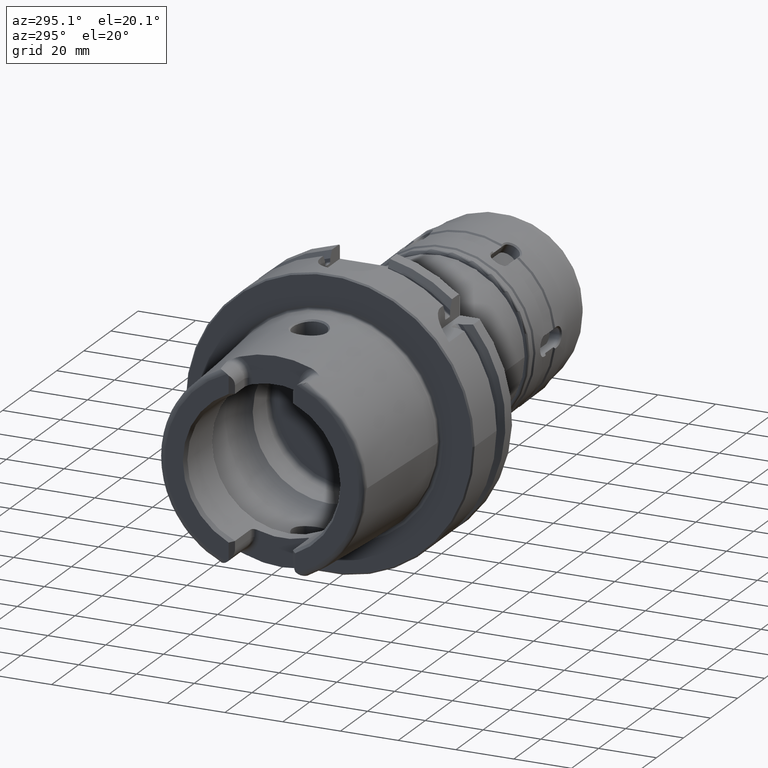
[diagram: clean part render]
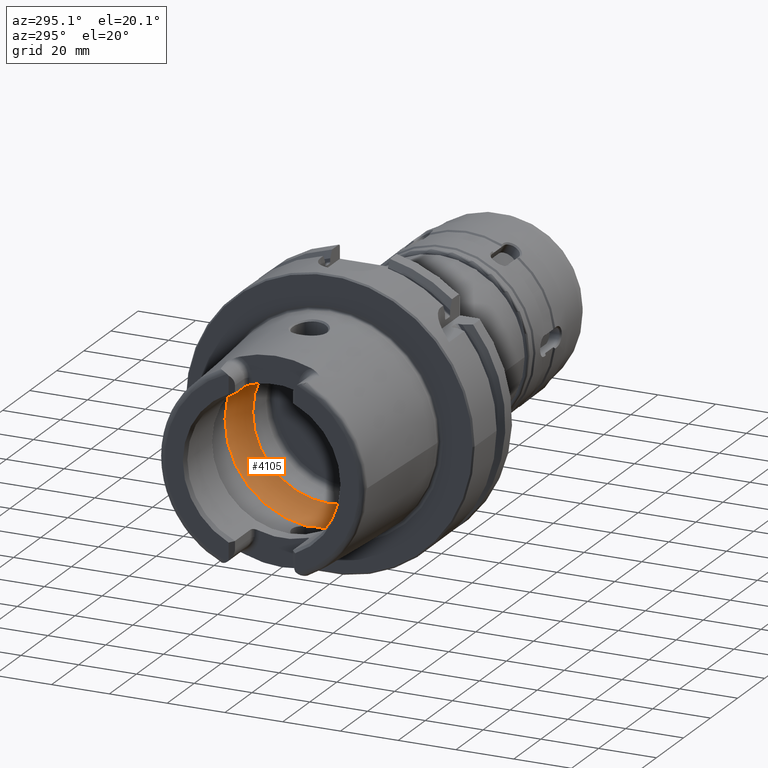
[diagram: same view with one face highlighted and labeled with its STEP entity id]
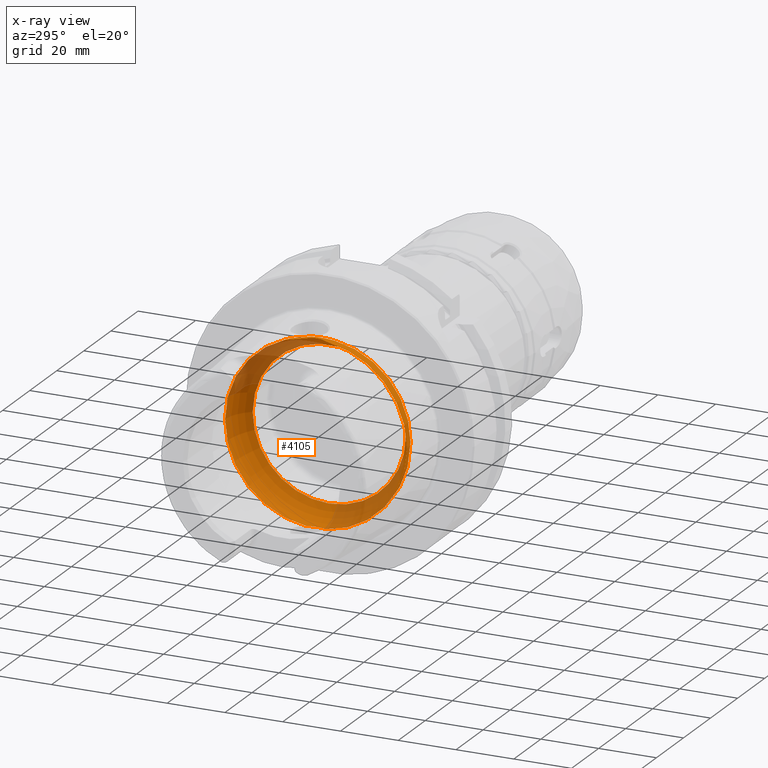
[diagram: x-ray of the same camera — body ghosted, the highlighted face saturated]
A machine part, auxiliary view. The second image highlights one B-rep face of the part: STEP entity #4105.
The next image is the same camera in x-ray: the body ghosted, the highlighted face saturated — about 31% of this face is hidden behind the body in this view.
In plain terms, the highlighted toroidal blend (fillet) surface has major radius 19.5 mm and minor (blend) radius 12 mm.
Its self-contained STEP definition (entity closure, byte-faithful):
#123=B_SPLINE_CURVE_WITH_KNOTS('',3,(#6710,#6711,#6712,#6713,#6714,#6715,
#6716,#6717,#6718,#6719),.UNSPECIFIED.,.F.,.F.,(4,2,2,2,4),(-0.704306975532235,
-0.563368317577754,-0.446049375641081,-0.386534165165624,-0.352317223799877),
 .UNSPECIFIED.);
#125=B_SPLINE_CURVE_WITH_KNOTS('',3,(#6752,#6753,#6754,#6755,#6756,#6757,
#6758,#6759,#6760,#6761),.UNSPECIFIED.,.F.,.F.,(4,2,2,2,4),(-0.352317223799877,
-0.339935606805379,-0.289031750490702,-0.208814277120691,0.),
 .UNSPECIFIED.);
#128=B_SPLINE_CURVE_WITH_KNOTS('',3,(#6902,#6903,#6904,#6905,#6906,#6907,
#6908,#6909,#6910,#6911),.UNSPECIFIED.,.F.,.F.,(4,2,2,2,4),(-0.704306975532881,
-0.563368317578124,-0.446049375641235,-0.386534165165663,-0.352317223799864),
 .UNSPECIFIED.);
#130=B_SPLINE_CURVE_WITH_KNOTS('',3,(#6944,#6945,#6946,#6947,#6948,#6949,
#6950,#6951,#6952,#6953),.UNSPECIFIED.,.F.,.F.,(4,2,2,2,4),(-0.352317223799864,
-0.339935606805357,-0.289031750490679,-0.208814277120681,0.),
 .UNSPECIFIED.);
#920=FACE_OUTER_BOUND('',#1161,.T.);
#1161=EDGE_LOOP('',(#2951,#2952,#2953,#2954,#2955,#2956,#2957,#2958,#2959,
#2960,#2961,#2962));
#1426=CIRCLE('',#4472,31.5);
#1430=CIRCLE('',#4476,31.5);
#1431=CIRCLE('',#4477,31.5);
#1432=CIRCLE('',#4479,26.5);
#1433=CIRCLE('',#4480,26.5);
#1434=CIRCLE('',#4481,26.5);
#1435=CIRCLE('',#4482,12.);
#1735=VERTEX_POINT('',#6707);
#1736=VERTEX_POINT('',#6709);
#1737=VERTEX_POINT('',#6720);
#1740=VERTEX_POINT('',#6900);
#1741=VERTEX_POINT('',#6901);
#1742=VERTEX_POINT('',#6912);
#1744=VERTEX_POINT('',#6958);
#1748=VERTEX_POINT('',#6970);
#1749=VERTEX_POINT('',#6971);
#1750=VERTEX_POINT('',#6973);
#2202=EDGE_CURVE('',#1736,#1735,#123,.T.);
#2204=EDGE_CURVE('',#1735,#1737,#125,.T.);
#2208=EDGE_CURVE('',#1740,#1741,#128,.T.);
#2210=EDGE_CURVE('',#1741,#1742,#130,.T.);
#2213=EDGE_CURVE('',#1744,#1740,#1426,.T.);
#2218=EDGE_CURVE('',#1737,#1744,#1430,.T.);
#2219=EDGE_CURVE('',#1742,#1736,#1431,.T.);
#2220=EDGE_CURVE('',#1748,#1749,#1432,.T.);
#2221=EDGE_CURVE('',#1750,#1748,#1433,.T.);
#2222=EDGE_CURVE('',#1749,#1750,#1434,.T.);
#2223=EDGE_CURVE('',#1749,#1735,#1435,.T.);
#2951=ORIENTED_EDGE('',*,*,#2220,.F.);
#2952=ORIENTED_EDGE('',*,*,#2221,.F.);
#2953=ORIENTED_EDGE('',*,*,#2222,.F.);
#2954=ORIENTED_EDGE('',*,*,#2223,.T.);
#2955=ORIENTED_EDGE('',*,*,#2204,.T.);
#2956=ORIENTED_EDGE('',*,*,#2218,.T.);
#2957=ORIENTED_EDGE('',*,*,#2213,.T.);
#2958=ORIENTED_EDGE('',*,*,#2208,.T.);
#2959=ORIENTED_EDGE('',*,*,#2210,.T.);
#2960=ORIENTED_EDGE('',*,*,#2219,.T.);
#2961=ORIENTED_EDGE('',*,*,#2202,.T.);
#2962=ORIENTED_EDGE('',*,*,#2223,.F.);
#4041=TOROIDAL_SURFACE('',#4478,19.5,12.);
#4105=ADVANCED_FACE('',(#920),#4041,.F.);
#4472=AXIS2_PLACEMENT_3D('',#6959,#5113,#5114);
#4476=AXIS2_PLACEMENT_3D('',#6967,#5122,#5123);
#4477=AXIS2_PLACEMENT_3D('',#6968,#5124,#5125);
#4478=AXIS2_PLACEMENT_3D('',#6969,#5126,#5127);
#4479=AXIS2_PLACEMENT_3D('',#6972,#5128,#5129);
#4480=AXIS2_PLACEMENT_3D('',#6974,#5130,#5131);
#4481=AXIS2_PLACEMENT_3D('',#6975,#5132,#5133);
#4482=AXIS2_PLACEMENT_3D('',#6976,#5134,#5135);
#5113=DIRECTION('center_axis',(-1.,0.,0.));
#5114=DIRECTION('ref_axis',(0.,0.,1.));
#5122=DIRECTION('center_axis',(-1.,0.,0.));
#5123=DIRECTION('ref_axis',(0.,0.,1.));
#5124=DIRECTION('center_axis',(-1.,0.,0.));
#5125=DIRECTION('ref_axis',(0.,0.,1.));
#5126=DIRECTION('center_axis',(-1.,0.,0.));
#5127=DIRECTION('ref_axis',(0.,0.,1.));
#5128=DIRECTION('center_axis',(-1.,0.,0.));
#5129=DIRECTION('ref_axis',(0.,0.,1.));
#5130=DIRECTION('center_axis',(-1.,0.,0.));
#5131=DIRECTION('ref_axis',(0.,0.,1.));
#5132=DIRECTION('center_axis',(-1.,0.,0.));
#5133=DIRECTION('ref_axis',(0.,0.,1.));
#5134=DIRECTION('center_axis',(0.,1.,-1.22464679914735E-16));
#5135=DIRECTION('ref_axis',(0.,-1.22464679914735E-16,-1.));
#6707=CARTESIAN_POINT('',(-9.,7.31685969699336E-16,-31.4582607431014));
#6709=CARTESIAN_POINT('',(-10.,3.31662479035542,-31.3249102153542));
#6710=CARTESIAN_POINT('Ctrl Pts',(-10.,3.31662479035541,-31.3249102153542));
#6711=CARTESIAN_POINT('Ctrl Pts',(-9.74127936765642,2.9265887617158,-31.3662065240371));
#6712=CARTESIAN_POINT('Ctrl Pts',(-9.52862762836098,2.50688318043554,-31.3949925235713));
#6713=CARTESIAN_POINT('Ctrl Pts',(-9.23240476385999,1.69927856892452,-31.4324255053116));
#6714=CARTESIAN_POINT('Ctrl Pts',(-9.13392344910017,1.31988974241601,-31.4435429781858));
#6715=CARTESIAN_POINT('Ctrl Pts',(-9.04220079429722,0.737558982965052,-31.4537190708018));
#6716=CARTESIAN_POINT('Ctrl Pts',(-9.02106779489129,0.540134132990375,-31.4559959808551));
#6717=CARTESIAN_POINT('Ctrl Pts',(-9.00325309475839,0.228126507331767,-31.4579131546092));
#6718=CARTESIAN_POINT('Ctrl Pts',(-9.,0.114070256385601,-31.4582607431014));
#6719=CARTESIAN_POINT('Ctrl Pts',(-9.,6.93889390390723E-16,-31.4582607431014));
#6720=CARTESIAN_POINT('',(-10.,-3.31662479035542,-31.3249102153542));
#6752=CARTESIAN_POINT('Ctrl Pts',(-9.,7.01335490450834E-16,-31.4582607431014));
#6753=CARTESIAN_POINT('Ctrl Pts',(-9.,-0.0412770448981316,-31.4582607431014));
#6754=CARTESIAN_POINT('Ctrl Pts',(-9.0004259501075,-0.0825559236689198,
-31.4582151361457));
#6755=CARTESIAN_POINT('Ctrl Pts',(-9.00478075477959,-0.293516919658797,
-31.4577484235034));
#6756=CARTESIAN_POINT('Ctrl Pts',(-9.01548241237086,-0.462981091842713,
-31.4566045938877));
#6757=CARTESIAN_POINT('Ctrl Pts',(-9.06151123201634,-0.897706518793593,
-31.4515940123075));
#6758=CARTESIAN_POINT('Ctrl Pts',(-9.10742242341762,-1.16146830462694,-31.4465573898449));
#6759=CARTESIAN_POINT('Ctrl Pts',(-9.33560100291262,-2.09736419662528,-31.4200720324784));
#6760=CARTESIAN_POINT('Ctrl Pts',(-9.61673416003176,-2.73882979665765,-31.3860861033828));
#6761=CARTESIAN_POINT('Ctrl Pts',(-10.,-3.31662479035541,-31.3249102153542));
#6900=CARTESIAN_POINT('',(-10.,-3.31662479035542,31.3249102153542));
#6901=CARTESIAN_POINT('',(-8.99999999999999,7.75054056598756E-16,31.4582607431014));
#6902=CARTESIAN_POINT('Ctrl Pts',(-9.99999999999999,-3.31662479035541,31.3249102153542));
#6903=CARTESIAN_POINT('Ctrl Pts',(-9.74127936765643,-2.92658876171583,31.3662065240371));
#6904=CARTESIAN_POINT('Ctrl Pts',(-9.52862762836099,-2.50688318043561,31.3949925235713));
#6905=CARTESIAN_POINT('Ctrl Pts',(-9.23240476385996,-1.69927856892447,31.4324255053116));
#6906=CARTESIAN_POINT('Ctrl Pts',(-9.13392344910015,-1.31988974241592,31.4435429781858));
#6907=CARTESIAN_POINT('Ctrl Pts',(-9.04220079429722,-0.737558982965067,
31.4537190708018));
#6908=CARTESIAN_POINT('Ctrl Pts',(-9.02106779489129,-0.540134132990415,
31.4559959808551));
#6909=CARTESIAN_POINT('Ctrl Pts',(-9.00325309475839,-0.228126507331796,
31.4579131546092));
#6910=CARTESIAN_POINT('Ctrl Pts',(-8.99999999999999,-0.114070256385655,
31.4582607431014));
#6911=CARTESIAN_POINT('Ctrl Pts',(-8.99999999999999,7.97972798949331E-16,
31.4582607431014));
#6912=CARTESIAN_POINT('',(-10.,3.31662479035542,31.3249102153542));
#6944=CARTESIAN_POINT('Ctrl Pts',(-8.99999999999999,8.16547887892294E-16,
31.4582607431014));
#6945=CARTESIAN_POINT('Ctrl Pts',(-8.99999999999999,0.0412770448981195,
31.4582607431014));
#6946=CARTESIAN_POINT('Ctrl Pts',(-9.00042595010749,0.0825559236689046,
31.4582151361457));
#6947=CARTESIAN_POINT('Ctrl Pts',(-9.00478075477959,0.293516919658727,31.4577484235034));
#6948=CARTESIAN_POINT('Ctrl Pts',(-9.01548241237085,0.462981091842669,31.4566045938877));
#6949=CARTESIAN_POINT('Ctrl Pts',(-9.06151123201633,0.897706518793561,31.4515940123075));
#6950=CARTESIAN_POINT('Ctrl Pts',(-9.1074224234176,1.16146830462691,31.4465573898449));
#6951=CARTESIAN_POINT('Ctrl Pts',(-9.33560100291262,2.09736419662534,31.4200720324784));
#6952=CARTESIAN_POINT('Ctrl Pts',(-9.61673416003176,2.73882979665767,31.3860861033828));
#6953=CARTESIAN_POINT('Ctrl Pts',(-9.99999999999999,3.3166247903554,31.3249102153542));
#6958=CARTESIAN_POINT('',(-10.,-31.5,3.85763741731416E-15));
#6959=CARTESIAN_POINT('Origin',(-10.,0.,0.));
#6967=CARTESIAN_POINT('Origin',(-10.,0.,0.));
#6968=CARTESIAN_POINT('Origin',(-10.,0.,0.));
#6969=CARTESIAN_POINT('Origin',(-10.,0.,0.));
#6970=CARTESIAN_POINT('',(-0.253205655191035,26.5,0.));
#6971=CARTESIAN_POINT('',(-0.253205655191033,-3.24531401774049E-15,-26.5));
#6972=CARTESIAN_POINT('Origin',(-0.253205655191033,0.,0.));
#6973=CARTESIAN_POINT('',(-0.253205655191033,-26.5,3.24531401774049E-15));
#6974=CARTESIAN_POINT('Origin',(-0.253205655191033,0.,0.));
#6975=CARTESIAN_POINT('Origin',(-0.253205655191033,0.,0.));
#6976=CARTESIAN_POINT('Origin',(-10.,-2.38806125833734E-15,-19.5));